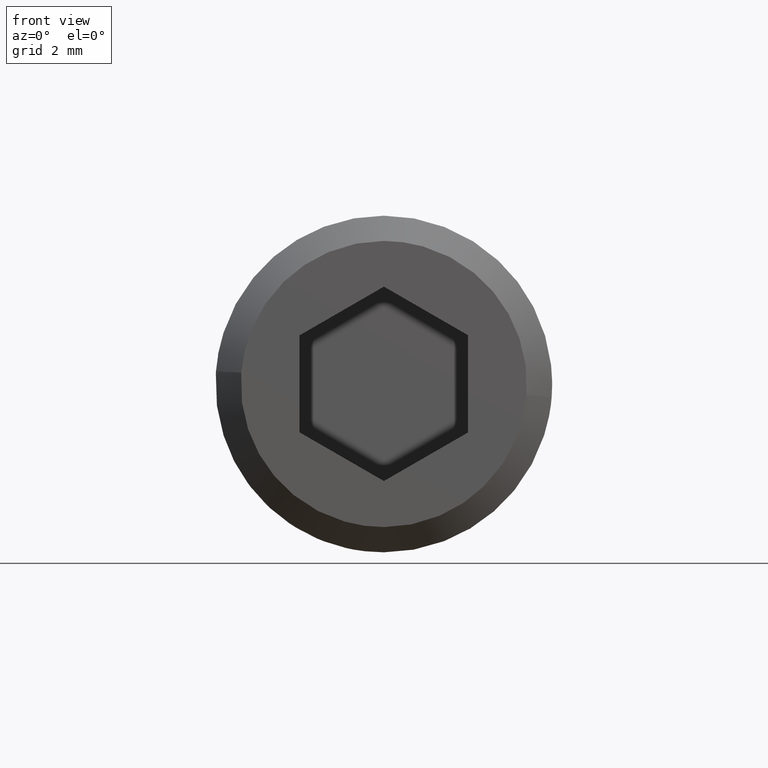
[diagram: clean part render]
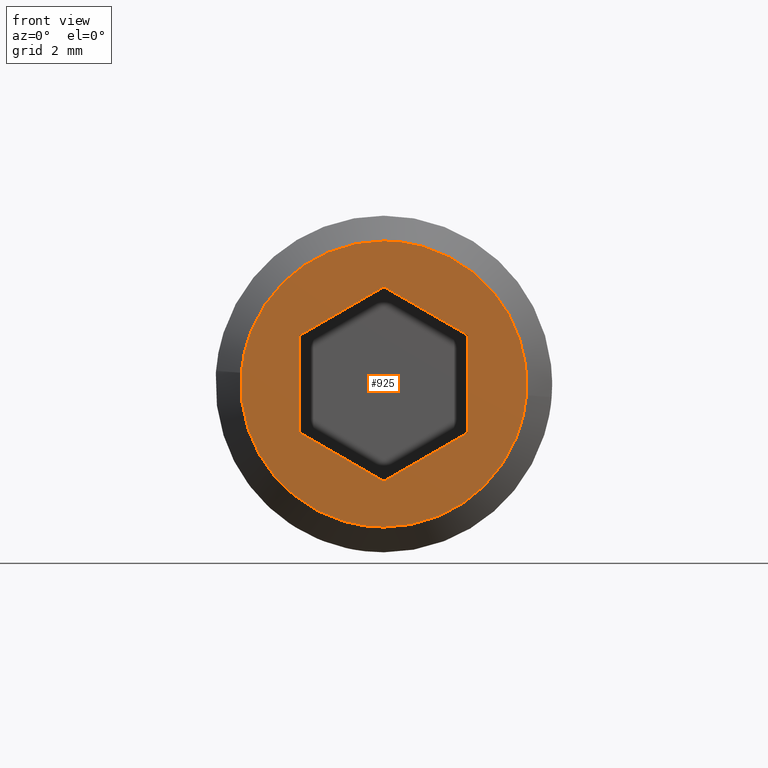
[diagram: same view with one face highlighted and labeled with its STEP entity id]
A machine part, front view. The second image highlights one B-rep face of the part: STEP entity #925.
In plain terms, the highlighted face is a freeform B-spline surface patch.
Its self-contained STEP definition (entity closure, byte-faithful):
#607=CARTESIAN_POINT('',(3.389518934692640,-11.499999999999989,-0.266760925474770));
#608=VERTEX_POINT('',#607);
#614=CARTESIAN_POINT('',(0.0,-11.500000000000000,-3.400000000000001));
#615=VERTEX_POINT('',#614);
#616=CARTESIAN_POINT('',(0.0,-11.500000000000000,-3.400000000000001));
#617=CARTESIAN_POINT('',(3.142927671637728,-11.499999999999998,-3.400000000000002));
#618=CARTESIAN_POINT('',(3.389518934692640,-11.499999999999993,-0.266760925474770));
#626=(BOUNDED_CURVE()B_SPLINE_CURVE(2,(#616,#617,#618),.UNSPECIFIED.,.F.,.U.)B_SPLINE_CURVE_WITH_KNOTS((3,3),(0.0,0.236331300632757),.UNSPECIFIED.)CURVE()GEOMETRIC_REPRESENTATION_ITEM()RATIONAL_B_SPLINE_CURVE((1.0,0.723120658605208,0.969723356171796))REPRESENTATION_ITEM(''));
#627=EDGE_CURVE('',#615,#608,#626,.T.);
#629=CARTESIAN_POINT('',(-3.389518934692640,-11.499999999999989,0.266760925474769));
#630=VERTEX_POINT('',#629);
#631=CARTESIAN_POINT('',(-3.389518934692639,-11.499999999999993,0.266760925474769));
#632=CARTESIAN_POINT('',(-3.400000000000000,-11.499999999999995,0.133586363826171));
#633=CARTESIAN_POINT('',(-3.400000000000000,-11.500000000000000,-6.735335E-016));
#634=CARTESIAN_POINT('',(-3.400000000000001,-11.500000000000000,-3.400000000000002));
#635=CARTESIAN_POINT('',(0.0,-11.500000000000000,-3.400000000000001));
#643=(BOUNDED_CURVE()B_SPLINE_CURVE(2,(#631,#632,#633,#634,#635),.UNSPECIFIED.,.F.,.U.)B_SPLINE_CURVE_WITH_KNOTS((3,2,3),(0.736331300632757,0.750000000000000,1.0),.UNSPECIFIED.)CURVE()GEOMETRIC_REPRESENTATION_ITEM()RATIONAL_B_SPLINE_CURVE((0.969723356171796,0.983986122581340,1.0,0.707106781186548,1.0))REPRESENTATION_ITEM(''));
#644=EDGE_CURVE('',#630,#615,#643,.T.);
#678=CARTESIAN_POINT('',(0.0,-11.500000000000000,3.399999999999999));
#679=VERTEX_POINT('',#678);
#680=CARTESIAN_POINT('',(0.0,-11.500000000000000,3.399999999999999));
#681=CARTESIAN_POINT('',(-3.142927671637727,-11.500000000000000,3.400000000000000));
#682=CARTESIAN_POINT('',(-3.389518934692640,-11.499999999999995,0.266760925474769));
#690=(BOUNDED_CURVE()B_SPLINE_CURVE(2,(#680,#681,#682),.UNSPECIFIED.,.F.,.U.)B_SPLINE_CURVE_WITH_KNOTS((3,3),(0.500000000000000,0.736331300632757),.UNSPECIFIED.)CURVE()GEOMETRIC_REPRESENTATION_ITEM()RATIONAL_B_SPLINE_CURVE((1.0,0.723120658605208,0.969723356171795))REPRESENTATION_ITEM(''));
#691=EDGE_CURVE('',#679,#630,#690,.T.);
#693=CARTESIAN_POINT('',(3.389518934692640,-11.499999999999991,-0.266760925474770));
#694=CARTESIAN_POINT('',(3.400000000000000,-11.500000000000005,-0.133586363826172));
#695=CARTESIAN_POINT('',(3.400000000000000,-11.500000000000000,-6.735335E-016));
#696=CARTESIAN_POINT('',(3.400000000000001,-11.500000000000000,3.399999999999999));
#697=CARTESIAN_POINT('',(0.0,-11.500000000000000,3.399999999999999));
#705=(BOUNDED_CURVE()B_SPLINE_CURVE(2,(#693,#694,#695,#696,#697),.UNSPECIFIED.,.F.,.U.)B_SPLINE_CURVE_WITH_KNOTS((3,2,3),(0.236331300632757,0.250000000000000,0.500000000000000),.UNSPECIFIED.)CURVE()GEOMETRIC_REPRESENTATION_ITEM()RATIONAL_B_SPLINE_CURVE((0.969723356171796,0.983986122581340,1.0,0.707106781186548,1.0))REPRESENTATION_ITEM(''));
#706=EDGE_CURVE('',#608,#679,#705,.T.);
#779=CARTESIAN_POINT('',(2.0,-11.500000000000000,1.154701000000000));
#780=VERTEX_POINT('',#779);
#781=CARTESIAN_POINT('',(0.0,-11.500000000000000,2.309401000000000));
#782=VERTEX_POINT('',#781);
#783=CARTESIAN_POINT('',(2.0,-11.500000000000000,1.154701000000000));
#784=CARTESIAN_POINT('',(0.0,-11.500000000000000,2.309401000000000));
#785=QUASI_UNIFORM_CURVE('',1,(#783,#784),.UNSPECIFIED.,.F.,.U.);
#786=EDGE_CURVE('',#780,#782,#785,.T.);
#807=CARTESIAN_POINT('',(2.0,-11.500000000000000,-1.154701000000000));
#808=VERTEX_POINT('',#807);
#809=CARTESIAN_POINT('',(2.0,-11.500000000000000,-1.154701000000000));
#810=CARTESIAN_POINT('',(2.0,-11.500000000000000,1.154701000000000));
#811=QUASI_UNIFORM_CURVE('',1,(#809,#810),.UNSPECIFIED.,.F.,.U.);
#812=EDGE_CURVE('',#808,#780,#811,.T.);
#829=CARTESIAN_POINT('',(0.0,-11.500000000000000,-2.309401000000000));
#830=VERTEX_POINT('',#829);
#831=CARTESIAN_POINT('',(0.0,-11.500000000000000,-2.309401000000000));
#832=CARTESIAN_POINT('',(2.0,-11.500000000000000,-1.154701000000000));
#833=QUASI_UNIFORM_CURVE('',1,(#831,#832),.UNSPECIFIED.,.F.,.U.);
#834=EDGE_CURVE('',#830,#808,#833,.T.);
#851=CARTESIAN_POINT('',(-2.0,-11.500000000000000,-1.154701000000000));
#852=VERTEX_POINT('',#851);
#853=CARTESIAN_POINT('',(-2.0,-11.500000000000000,-1.154701000000000));
#854=CARTESIAN_POINT('',(0.0,-11.500000000000000,-2.309401000000000));
#855=QUASI_UNIFORM_CURVE('',1,(#853,#854),.UNSPECIFIED.,.F.,.U.);
#856=EDGE_CURVE('',#852,#830,#855,.T.);
#873=CARTESIAN_POINT('',(-2.0,-11.500000000000000,1.154701000000000));
#874=VERTEX_POINT('',#873);
#875=CARTESIAN_POINT('',(-2.0,-11.500000000000000,1.154701000000000));
#876=CARTESIAN_POINT('',(-2.0,-11.500000000000000,-1.154701000000000));
#877=QUASI_UNIFORM_CURVE('',1,(#875,#876),.UNSPECIFIED.,.F.,.U.);
#878=EDGE_CURVE('',#874,#852,#877,.T.);
#895=CARTESIAN_POINT('',(0.0,-11.500000000000000,2.309401000000000));
#896=CARTESIAN_POINT('',(-2.0,-11.500000000000000,1.154701000000000));
#897=QUASI_UNIFORM_CURVE('',1,(#895,#896),.UNSPECIFIED.,.F.,.U.);
#898=EDGE_CURVE('',#782,#874,#897,.T.);
#906=CARTESIAN_POINT('',(-3.738621879642783,-11.500000000000000,3.739660114487349));
#907=CARTESIAN_POINT('',(-3.738621879642783,-11.500000000000000,-3.739660175284088));
#908=CARTESIAN_POINT('',(3.738621818846045,-11.500000000000000,3.739660114487349));
#909=CARTESIAN_POINT('',(3.738621818846045,-11.500000000000000,-3.739660175284088));
#910=B_SPLINE_SURFACE_WITH_KNOTS('',1,1,((#906,#908),(#907,#909)),.UNSPECIFIED.,.F.,.F.,.U.,(2,2),(2,2),(0.0,7.479320289771438),(0.0,7.477243698488827),.UNSPECIFIED.);
#911=ORIENTED_EDGE('',*,*,#627,.T.);
#912=ORIENTED_EDGE('',*,*,#706,.T.);
#913=ORIENTED_EDGE('',*,*,#691,.T.);
#914=ORIENTED_EDGE('',*,*,#644,.T.);
#915=EDGE_LOOP('',(#911,#912,#913,#914));
#916=FACE_OUTER_BOUND('',#915,.T.);
#917=ORIENTED_EDGE('',*,*,#898,.F.);
#918=ORIENTED_EDGE('',*,*,#786,.F.);
#919=ORIENTED_EDGE('',*,*,#812,.F.);
#920=ORIENTED_EDGE('',*,*,#834,.F.);
#921=ORIENTED_EDGE('',*,*,#856,.F.);
#922=ORIENTED_EDGE('',*,*,#878,.F.);
#923=EDGE_LOOP('',(#917,#918,#919,#920,#921,#922));
#924=FACE_BOUND('',#923,.T.);
#925=ADVANCED_FACE('',(#916,#924),#910,.T.);